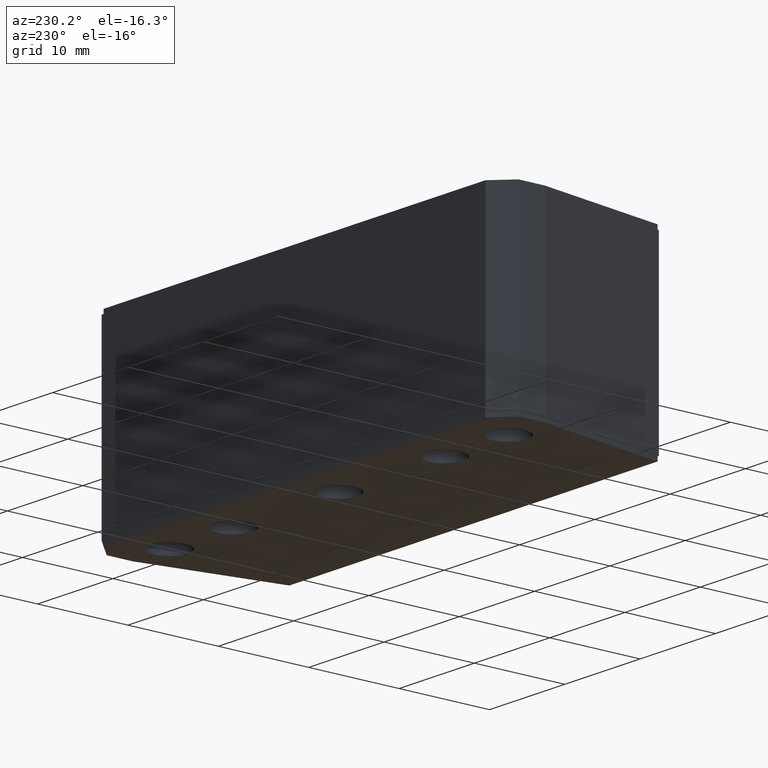
[diagram: clean part render]
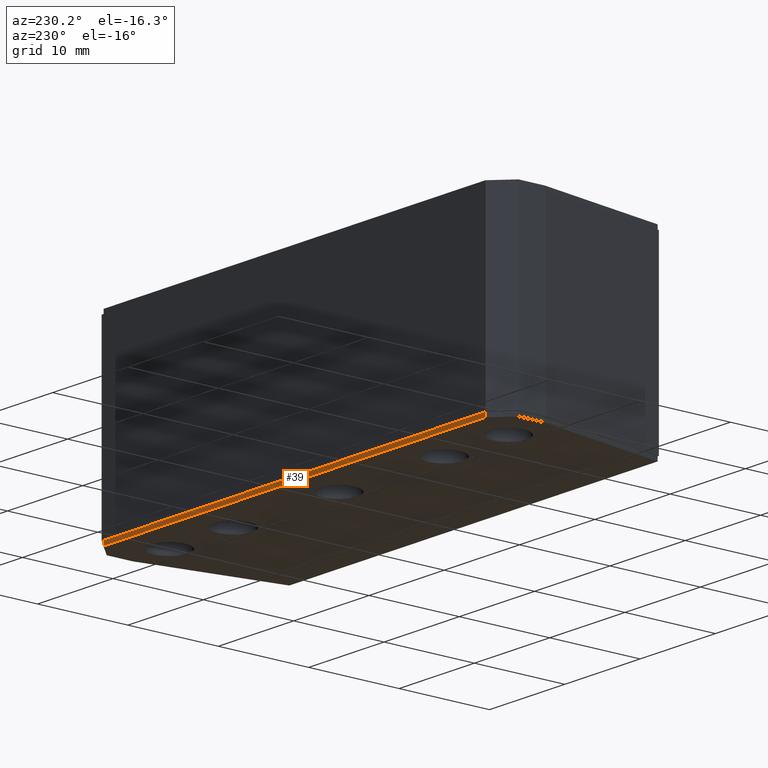
[diagram: same view with one face highlighted and labeled with its STEP entity id]
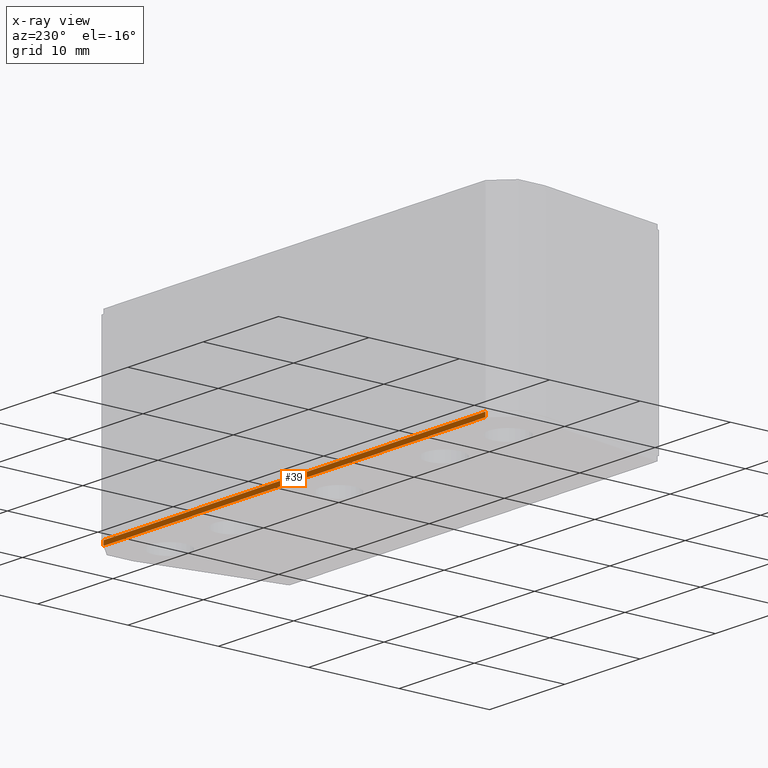
[diagram: x-ray of the same camera — body ghosted, the highlighted face saturated]
A machine part, auxiliary view. The second image highlights one B-rep face of the part: STEP entity #39.
The next image is the same camera in x-ray: the body ghosted, the highlighted face saturated — about 0% of this face is hidden behind the body in this view.
In plain terms, the highlighted planar face has unit normal (-0, 1, 0).
Its self-contained STEP definition (entity closure, byte-faithful):
#39 = ADVANCED_FACE ( 'NONE', ( #2162 ), #2168, .T. ) ;
#106 = EDGE_CURVE ( 'NONE', #2765, #2764, #1873, .T. ) ;
#107 = EDGE_CURVE ( 'NONE', #2748, #2770, #1866, .T. ) ;
#111 = EDGE_CURVE ( 'NONE', #2770, #2764, #1852, .T. ) ;
#116 = EDGE_CURVE ( 'NONE', #2765, #2748, #1833, .T. ) ;
#326 = AXIS2_PLACEMENT_3D ( 'NONE', #2166, #2160, #2159 ) ;
#608 = VECTOR ( 'NONE', #1846, 1000.000000000000000 ) ;
#638 = VECTOR ( 'NONE', #1855, 1000.000000000000000 ) ;
#644 = VECTOR ( 'NONE', #1858, 1000.000000000000000 ) ;
#753 = VECTOR ( 'NONE', #1829, 1000.000000000000000 ) ;
#809 = EDGE_LOOP ( 'NONE', ( #3037, #3154, #3159, #2914 ) ) ;
#1829 = DIRECTION ( 'NONE',  ( 0.0000000000000000000, 0.0000000000000000000, -1.000000000000000000 ) ) ;
#1833 = LINE ( 'NONE', #1844, #753 ) ;
#1844 = CARTESIAN_POINT ( 'NONE',  ( 25.34999999999999800, 4.900000000000004800, -0.5000000000000000000 ) ) ;
#1846 = DIRECTION ( 'NONE',  ( 0.0000000000000000000, 0.0000000000000000000, 1.000000000000000000 ) ) ;
#1847 = CARTESIAN_POINT ( 'NONE',  ( -25.35000000000000100, 4.899999999999997700, -0.5000000000000000000 ) ) ;
#1852 = LINE ( 'NONE', #1847, #608 ) ;
#1855 = DIRECTION ( 'NONE',  ( -1.000000000000000000, -1.268536362688707000E-016, 0.0000000000000000000 ) ) ;
#1857 = CARTESIAN_POINT ( 'NONE',  ( 27.35000000000000100, 4.900000000000004800, -0.5000000000000000000 ) ) ;
#1858 = DIRECTION ( 'NONE',  ( -1.000000000000000000, -1.268536362688707000E-016, 0.0000000000000000000 ) ) ;
#1860 = CARTESIAN_POINT ( 'NONE',  ( 27.35000000000000100, 4.900000000000004800, 0.0000000000000000000 ) ) ;
#1866 = LINE ( 'NONE', #1857, #638 ) ;
#1873 = LINE ( 'NONE', #1860, #644 ) ;
#2159 = DIRECTION ( 'NONE',  ( -1.000000000000000000, -1.268536362688707000E-016, 0.0000000000000000000 ) ) ;
#2160 = DIRECTION ( 'NONE',  ( -1.268536362688707000E-016, 1.000000000000000000, 0.0000000000000000000 ) ) ;
#2162 = FACE_OUTER_BOUND ( 'NONE', #809, .T. ) ;
#2166 = CARTESIAN_POINT ( 'NONE',  ( 27.35000000000000100, 4.900000000000004800, -0.5000000000000000000 ) ) ;
#2168 = PLANE ( 'NONE',  #326 ) ;
#2635 = CARTESIAN_POINT ( 'NONE',  ( -25.35000000000000500, 4.899999999999996800, -0.5000000000000000000 ) ) ;
#2641 = CARTESIAN_POINT ( 'NONE',  ( 25.34999999999999800, 4.900000000000004800, 0.0000000000000000000 ) ) ;
#2642 = CARTESIAN_POINT ( 'NONE',  ( -25.35000000000000500, 4.899999999999996800, 0.0000000000000000000 ) ) ;
#2660 = CARTESIAN_POINT ( 'NONE',  ( 25.34999999999999800, 4.900000000000004800, -0.5000000000000000000 ) ) ;
#2748 = VERTEX_POINT ( 'NONE', #2660 ) ;
#2764 = VERTEX_POINT ( 'NONE', #2642 ) ;
#2765 = VERTEX_POINT ( 'NONE', #2641 ) ;
#2770 = VERTEX_POINT ( 'NONE', #2635 ) ;
#2914 = ORIENTED_EDGE ( 'NONE', *, *, #116, .T. ) ;
#3037 = ORIENTED_EDGE ( 'NONE', *, *, #107, .T. ) ;
#3154 = ORIENTED_EDGE ( 'NONE', *, *, #111, .T. ) ;
#3159 = ORIENTED_EDGE ( 'NONE', *, *, #106, .F. ) ;